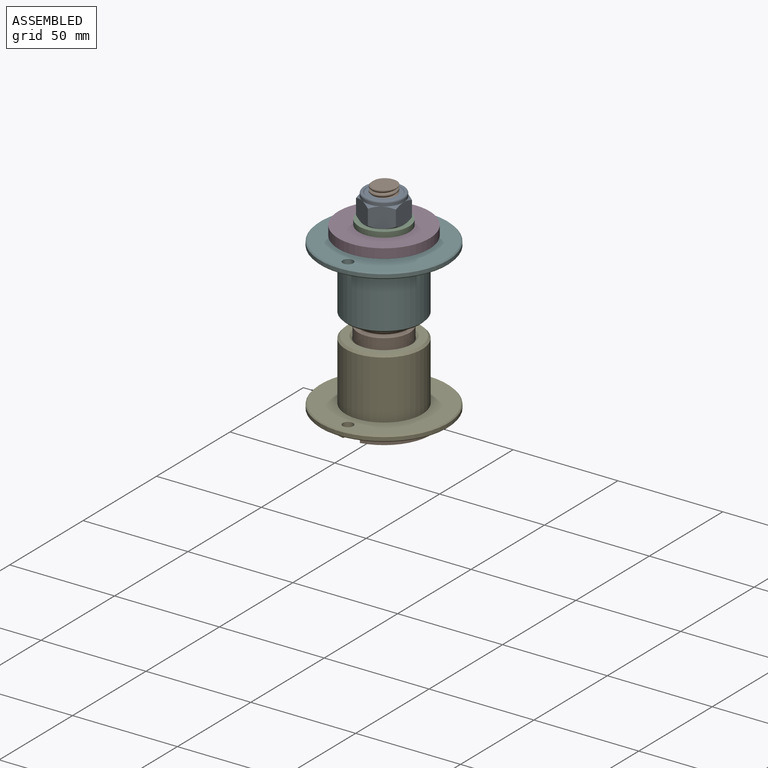
[diagram: assembled view]
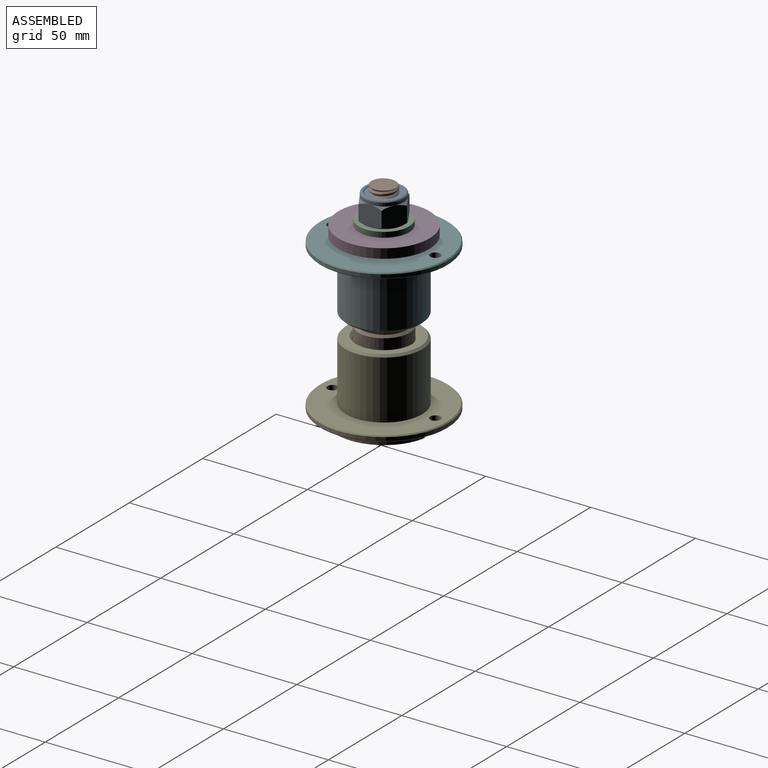
[diagram: assembled view, second angle]
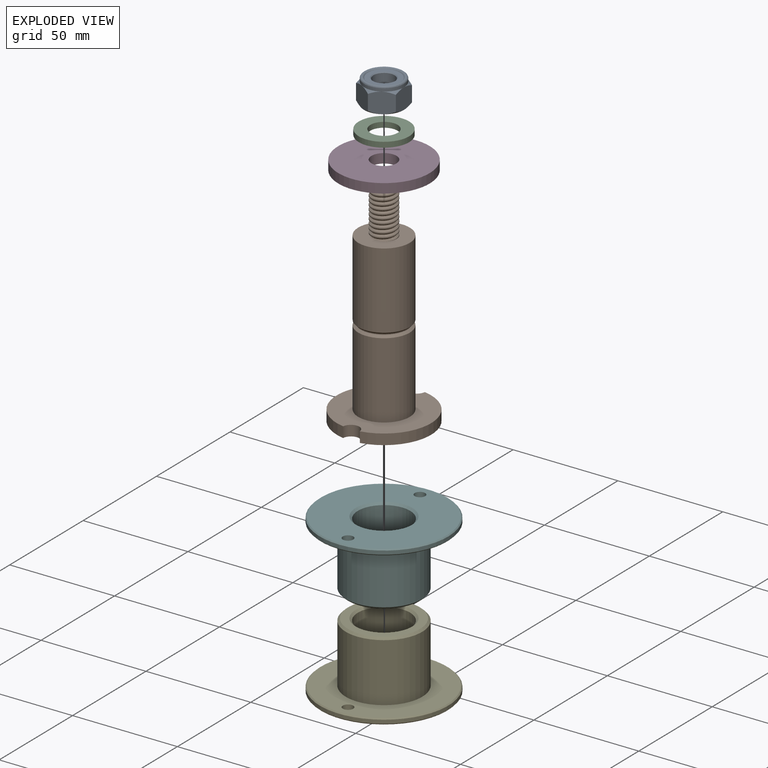
[diagram: exploded view]
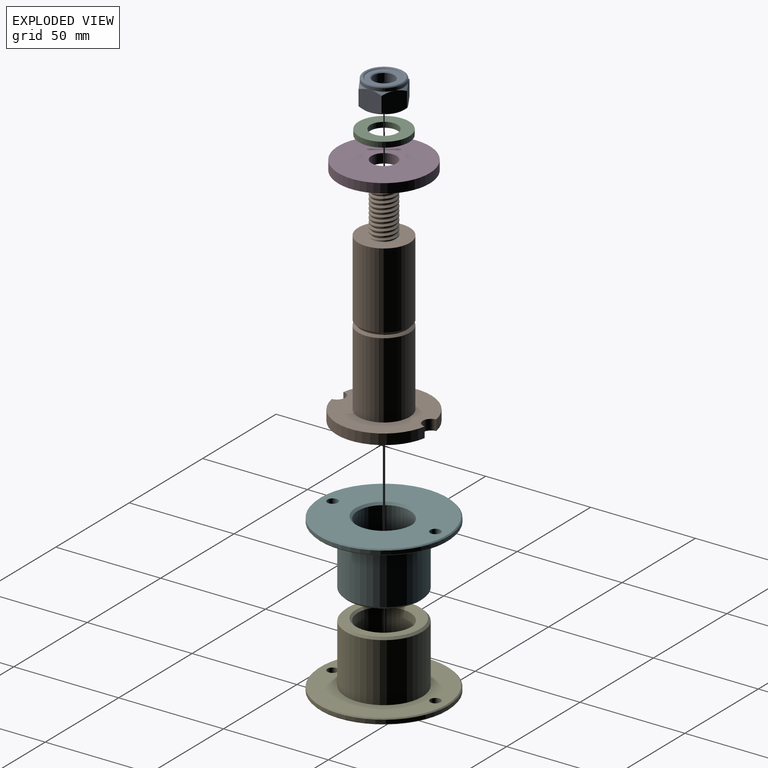
[diagram: exploded view, second angle]
ASSEMBLY  parts=6 mates=5
PART A: 30 faces, bbox 21.9x12x21.9 mm
  f0: cone r=9.5mm half-angle=51.1deg, axis (0,-1,0), area 6.2mm2, adj f19,f23,f24
  f1: cone r=9.5mm half-angle=51.1deg, axis (0,-1,0), area 6.2mm2, adj f19,f24,f25
  f2: cone r=9.5mm half-angle=51.1deg, axis (0,-1,0), area 6.2mm2, adj f19,f25,f26
  f3: cone r=5.05mm half-angle=45deg, axis (0,-1,0), area 23.3mm2, adj f10,f11,f13
  f4: cone r=9.5mm half-angle=51.1deg, axis (0,1,0), area 6.2mm2, adj f10,f25,f26
  f5: cone r=9.5mm half-angle=51.1deg, axis (0,1,0), area 6.2mm2, adj f10,f24,f25
  f6: cone r=9.5mm half-angle=51.1deg, axis (0,1,0), area 6.2mm2, adj f10,f23,f24
  f7: cone r=9.5mm half-angle=51.1deg, axis (0,1,0), area 6.2mm2, adj f10,f23,f28
  f8: cone r=9.5mm half-angle=51.1deg, axis (0,1,0), area 6.2mm2, adj f10,f27,f28
  f9: cone r=9.5mm half-angle=51.1deg, axis (0,1,0), area 6.2mm2, adj f10,f26,f27
  f10: plane 19x19mm, normal (0,-1,0), area 170.4mm2, adj f3,f4,f5,f6,f7,f8,f9,f11
  f11: cone r=5.05mm half-angle=45deg, axis (0,-1,0), area 23.3mm2, adj f3,f10,f12
  f12: cylinder r=5.05mm len=10.11mm, axis (0,-1,0), area 160.4mm2, adj f11,f13,f15
  f13: cylinder r=5.05mm len=10.11mm, axis (0,-1,0), area 160.4mm2, adj f3,f12,f14
  f14: cone r=5.05mm half-angle=45deg, axis (0,1,0), area 9mm2, adj f13,f15,f16
  f15: cone r=5.05mm half-angle=45deg, axis (0,1,0), area 9mm2, adj f12,f14,f16
  f16: plane 15.56x15.56mm, normal (0,1,0), area 97.3mm2, adj f14,f15,f17,f18
  f17: torus R=8.61mm, axis (0,1,0), area 67.5mm2, adj f16,f18,f19,f21
  f18: torus R=8.61mm, axis (0,1,0), area 67.5mm2, adj f16,f17,f19,f21
  f19: cylinder r=9.5mm len=17.73mm, axis (0,-1,0), area 40.6mm2, adj f0,f1,f2,f17,f18,f21
  f20: cone r=9.5mm half-angle=51.1deg, axis (0,-1,0), area 6.2mm2, adj f21,f26,f27
  f21: cylinder r=9.5mm len=17.73mm, axis (0,-1,0), area 40.6mm2, adj f17,f18,f19,f20,f22,f29
  f22: cone r=9.5mm half-angle=51.1deg, axis (0,-1,0), area 6.2mm2, adj f21,f23,f28
  f23: plane 9.75x9.5mm, normal (0.5,0,-0.87), area 98mm2, adj f0,f6,f7,f22,f24,f28
  f24: plane 9.75x9.5mm, normal (-0.5,0,-0.87), area 98mm2, adj f0,f1,f5,f6,f23,f25
  f25: plane 10.97x9.75mm, normal (-1,0,0), area 98mm2, adj f1,f2,f4,f5,f24,f26
  f26: plane 9.75x9.5mm, normal (-0.5,0,0.87), area 98mm2, adj f2,f4,f9,f20,f25,f27
  f27: plane 9.75x9.5mm, normal (0.5,0,0.87), area 98mm2, adj f8,f9,f20,f26,f28,f29
  f28: plane 10.97x9.75mm, normal (1,0,0), area 98mm2, adj f7,f8,f22,f23,f27,f29
  f29: cone r=9.5mm half-angle=51.1deg, axis (0,-1,0), area 6.2mm2, adj f21,f27,f28
PART B: 18 faces, bbox 45.5x44.8x103.5 mm
  f0: cylinder r=12.3mm len=36.3mm, axis (0,0,1), area 2805.4mm2, adj f4,f16
  f1: cylinder r=22.5mm len=44.29mm, axis (0,0,1), area 313.4mm2, adj f3,f4,f5,f6
  f2: cylinder r=22.5mm len=44.29mm, axis (0,0,1), area 313.4mm2, adj f3,f4,f5,f6
  f3: plane 45x44.29mm, normal (0,0,-1), area 1542.1mm2, adj f1,f2,f5,f6
  f4: plane 45x44.29mm, normal (0,0,1), area 1066.8mm2, adj f0,f1,f2,f5,f6
  f5: cylinder r=4mm len=7.97mm, axis (0,0,1), area 59.3mm2, adj f1,f2,f3,f4
  f6: cylinder r=4mm len=7.97mm, axis (0,0,1), area 59.3mm2, adj f1,f2,f3,f4
  f7: cylinder r=11.15mm len=22.3mm, axis (0,0,1), area 28mm2, adj f8,f9
  f8: plane 22.6x22.6mm, normal (0,0,1), area 10.6mm2, adj f7,f16
  f9: plane 22.6x22.6mm, normal (0,0,-1), area 10.6mm2, adj f7,f17
  f10: plane 12.01x11.74mm, normal (0,0,1), area 103.2mm2, adj f11,f12,f13
  f11: bspline ~24.07x13.86mm, area 405.9mm2, adj f10,f12,f13,f14
  f12: bspline ~23.74x13.86mm, area 407.6mm2, adj f10,f11,f13,f14
  f13: cylinder r=6mm len=22mm, axis (0,0,-1), area 166.4mm2, adj f10,f11,f12,f14
  f14: plane 25.07x25.07mm, normal (0,0,1), area 372.1mm2, adj f11,f12,f13,f15
  f15: cylinder r=12.3mm len=36.3mm, axis (0,0,1), area 2805.4mm2, adj f14,f17
  f16: cone r=11.3mm half-angle=45deg, axis (0,0,-1), area 104.9mm2, adj f0,f8
  f17: cone r=12.3mm half-angle=45deg, axis (0,0,1), area 104.9mm2, adj f9,f15
PART C: 4 faces, bbox 24x2.5x24 mm
  f0: cylinder r=6.5mm len=13mm, axis (0,1,0), area 103.7mm2, adj f2,f3
  f1: cylinder r=12mm len=24mm, axis (0,1,0), area 191.5mm2, adj f2,f3
  f2: plane 24x24mm, normal (0,-1,0), area 319.7mm2, adj f0,f1
  f3: plane 24x24mm, normal (0,1,0), area 319.7mm2, adj f0,f1
PART D: 4 faces, bbox 43.6x4.5x43.6 mm
  f0: cylinder r=6mm len=12mm, axis (0,1,0), area 169.6mm2, adj f2,f3
  f1: cylinder r=21.8mm len=43.6mm, axis (0,1,0), area 616.4mm2, adj f2,f3
  f2: plane 43.6x43.6mm, normal (0,-1,0), area 1379.9mm2, adj f0,f1
  f3: plane 43.6x43.6mm, normal (0,1,0), area 1379.9mm2, adj f0,f1
PART E: 13 faces, bbox 61.3x31.8x61.3 mm
  f0: cylinder r=12.5mm len=29.75mm, axis (0,1,0), area 2336.6mm2, adj f6,f7
  f1: cylinder r=30.67mm len=61.33mm, axis (0,1,0), area 337.2mm2, adj f11,f12
  f2: plane 60.33x60.33mm, normal (0,-1,0), area 2246.8mm2, adj f6,f9,f10,f11
  f3: plane 60.33x60.33mm, normal (0,1,0), area 1773mm2, adj f4,f9,f10,f12
  f4: cylinder r=18.25mm len=36.5mm, axis (0,-1,0), area 3210.7mm2, adj f3,f8
  f5: plane 34.5x34.5mm, normal (0,1,0), area 362.3mm2, adj f7,f8
  f6: cone r=12.5mm half-angle=45deg, axis (0,-1,0), area 115.5mm2, adj f0,f2
  f7: cone r=13.5mm half-angle=45deg, axis (0,1,0), area 115.5mm2, adj f0,f5
  f8: cone r=18.25mm half-angle=45deg, axis (0,-1,0), area 157.7mm2, adj f4,f5
  f9: cylinder r=2.5mm len=5mm, axis (0,1,0), area 43.2mm2, adj f2,f3
  f10: cylinder r=2.5mm len=5mm, axis (0,1,0), area 43.2mm2, adj f2,f3
  f11: cone r=30.16mm half-angle=45deg, axis (0,1,0), area 135.1mm2, adj f1,f2
  f12: cone r=30.67mm half-angle=45deg, axis (0,-1,0), area 135.1mm2, adj f1,f3
PART F: same geometry as E
PLACE A rot(axis=(1,0,0),90deg) t=(-10.45,-15.77,21)mm
PLACE B t=(-10.45,-15.77,12.96)mm
PLACE C rot(axis=(1,0,0),90deg) t=(-10.45,-15.77,21)mm
PLACE D rot(axis=(1,0,0),90deg) t=(-10.45,-15.77,18.46)mm
PLACE E rot(axis=(1,0,0),90deg) t=(-10.45,-15.77,-58.29)mm
PLACE F rot(axis=(-1,0,0),90deg) t=(-10.45,-15.77,9.16)mm
MATE fastened F.f4 <-> B.f0  axis (0,0,-1) through (-10.45,-15.77,-19.84)mm
MATE fastened C.f0 <-> D.f1  axis (0,0,-1) through (-10.45,-15.77,18.46)mm
MATE fastened E.f0 <-> B.f0  axis (0,0,-1) through (-10.45,-15.77,-61.04)mm
MATE fastened D.f0 <-> B.f0  axis (0,0,-1) through (-10.45,-15.77,13.96)mm
MATE fastened A.f0 <-> C.f1  axis (0,0,-1) through (-10.45,-15.77,21)mm
